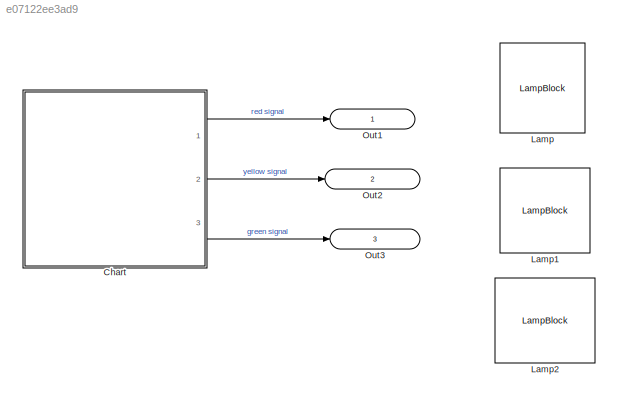
MODEL slx_e07122ee3ad9
KIND model
CONFIG AbsTol = auto
CONFIG EnableMultiTasking = off
CONFIG FixedStep = auto
CONFIG MaxStep = auto
CONFIG MinStep = auto
CONFIG RelTol = 1e-3
CONFIG SampleTimeConstraint = Unconstrained
CONFIG Solver = VariableStepAuto
CONFIG SolverName = VariableStepAuto
CONFIG StartTime = 0.0
CONFIG StopTime = 10.0
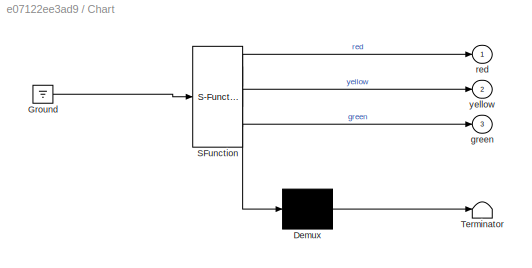
BLOCK [SubSystem] Chart
  ErrorFcn = Stateflow.Translate.translate
  PermitHierarchicalResolution = ExplicitOnly
  Ports = [0, 3]
  RequestExecContextInheritance = off
  SFBlockType = Chart
  TreatAsAtomicUnit = on
BLOCK [Demux] Chart/ Demux 
  Outputs = 1
  Ports = [1, 1]
BLOCK [Ground] Chart/ Ground 
BLOCK [S-Function] Chart/ SFunction 
  EnableBusSupport = on
  FunctionName = sf_sfun
  PortCounts = [1 4]
  Ports = [1, 4]
  SFcnIsStateOwnerBlock = off
  SFunctionDeploymentMode = off
  Tag = Stateflow S-Function TrafficLight_StateFlow 3
BLOCK [Terminator] Chart/ Terminator 
BLOCK [Outport] Chart/green
  IconDisplay = Port number
  Port = 3
BLOCK [Outport] Chart/red
  IconDisplay = Port number
BLOCK [Outport] Chart/yellow
  IconDisplay = Port number
  Port = 2
BLOCK [LampBlock] Lamp
  WebBlockId = 2
BLOCK [LampBlock] Lamp1
  WebBlockId = 3
BLOCK [LampBlock] Lamp2
  WebBlockId = 4
BLOCK [Outport] Out1
  IconDisplay = Signal name
BLOCK [Outport] Out2
  IconDisplay = Signal name
  Port = 2
BLOCK [Outport] Out3
  IconDisplay = Signal name
  Port = 3
  SignalName = green signal
LINE Chart:1 -> Out1:1
LINE Chart:2 -> Out2:1
LINE Chart:3 -> Out3:1
CHART Chart states=3 transitions=4
  STATE_LABEL 'Ready_\nen:\nred = uint8(0);\nyellow = uint8(0);\ngreen = uint8(0);\ndu:\nred = uint8(0);\nyellow = uint8(1);\ngreen = uint8(0);\nex:\n'
  STATE_LABEL 'Stop_\nen:\nred = uint8(0);\nyellow = uint8(0);\ngreen = uint8(0);\ndu:\nred = uint8(1);\nyellow = uint8(0);\ngreen = uint8(0);\nex:'
  STATE_LABEL 'Go_\nen:\nred = uint8(0);\nyellow = uint8(0);\ngreen = uint8(0);\ndu:\nred = uint8(0);\nyellow = uint8(0);\ngreen = uint8(1);\nex:'
